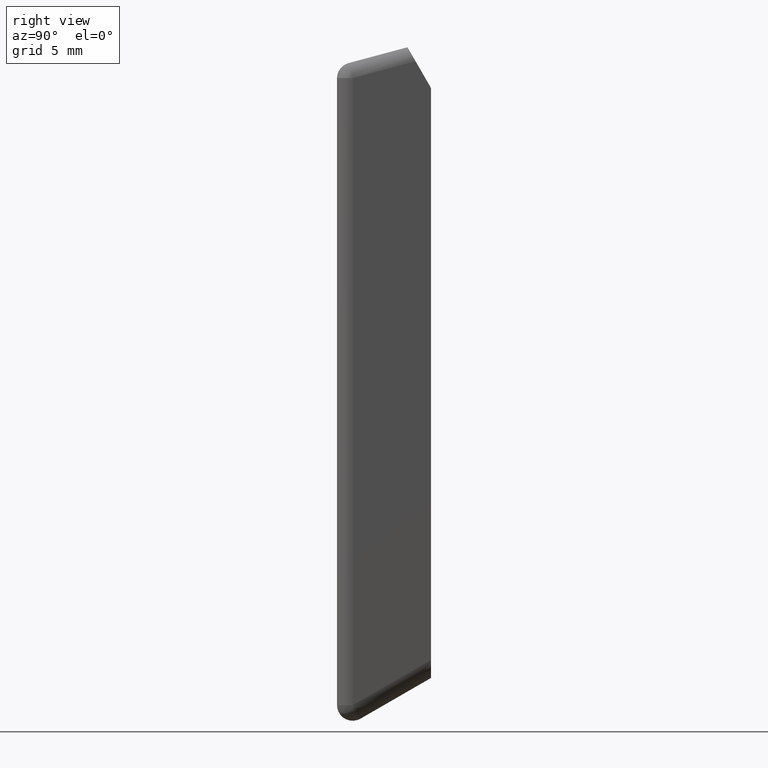
[diagram: clean part render]
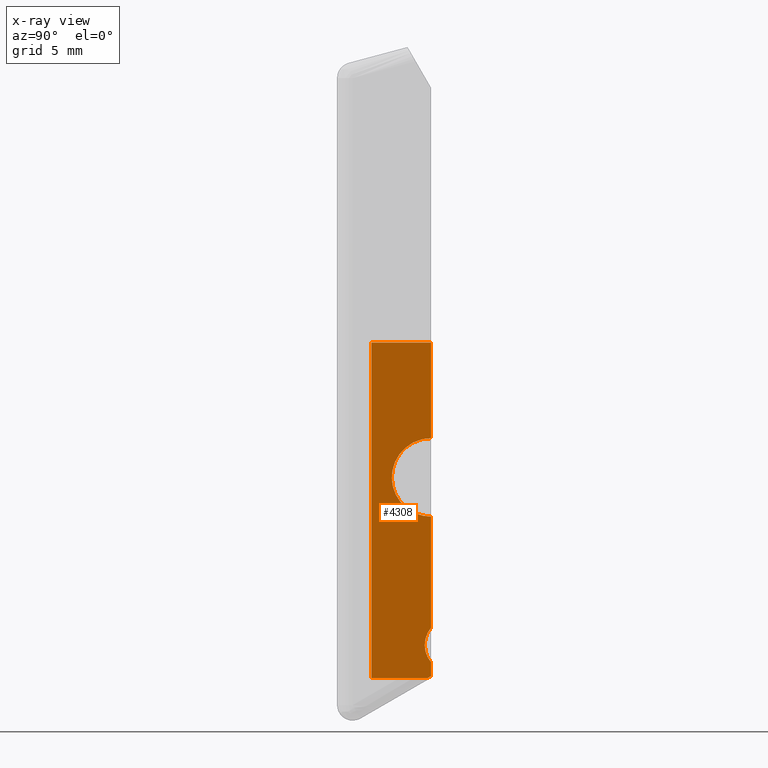
[diagram: x-ray — body ghosted, one internal face saturated and labeled with its STEP entity id]
A machine part, right view, then the same camera in x-ray: the body is ghosted and one INTERNAL B-rep face — a face not visible from any outside direction — is saturated and labeled: STEP entity #4308.
In plain terms, the highlighted face is a freeform B-spline surface patch.
Its self-contained STEP definition (entity closure, byte-faithful):
#2127=CARTESIAN_POINT('',(6.250000000000000,0.0,13.032000000000000));
#2128=VERTEX_POINT('',#2127);
#2153=CARTESIAN_POINT('',(6.250000000000000,-1.972152E-031,18.032000000000000));
#2154=VERTEX_POINT('',#2153);
#2160=CARTESIAN_POINT('',(6.250000000000000,0.0,13.032000000000000));
#2161=CARTESIAN_POINT('',(6.250000000000000,-2.500000000000000,13.032000000000000));
#2162=CARTESIAN_POINT('',(6.250000000000000,-2.500000000000000,15.532000000000000));
#2163=CARTESIAN_POINT('',(6.250000000000000,-2.500000000000000,18.032000000000007));
#2164=CARTESIAN_POINT('',(6.250000000000000,0.0,18.032000000000000));
#2172=(BOUNDED_CURVE()B_SPLINE_CURVE(2,(#2160,#2161,#2162,#2163,#2164),.UNSPECIFIED.,.F.,.U.)B_SPLINE_CURVE_WITH_KNOTS((3,2,3),(0.0,0.500000000000000,1.0),.UNSPECIFIED.)CURVE()GEOMETRIC_REPRESENTATION_ITEM()RATIONAL_B_SPLINE_CURVE((1.0,0.707106781186548,1.0,0.707106781186548,1.0))REPRESENTATION_ITEM(''));
#2173=EDGE_CURVE('',#2128,#2154,#2172,.T.);
#2192=CARTESIAN_POINT('',(6.250000000000000,0.0,3.736000000000105));
#2193=VERTEX_POINT('',#2192);
#2216=CARTESIAN_POINT('',(6.250000000000000,-4.930381E-032,5.927000000000110));
#2217=VERTEX_POINT('',#2216);
#2223=CARTESIAN_POINT('',(6.250000000000000,1.301043E-015,3.736000000000106));
#2224=CARTESIAN_POINT('',(6.250000000000000,-0.923202268357292,4.831500000000108));
#2225=CARTESIAN_POINT('',(6.250000000000000,-1.734723E-015,5.927000000000111));
#2233=(BOUNDED_CURVE()B_SPLINE_CURVE(2,(#2223,#2224,#2225),.UNSPECIFIED.,.F.,.U.)CURVE()GEOMETRIC_REPRESENTATION_ITEM()QUASI_UNIFORM_CURVE()RATIONAL_B_SPLINE_CURVE((1.0,0.764678675986619,1.0))REPRESENTATION_ITEM(''));
#2234=EDGE_CURVE('',#2193,#2217,#2233,.T.);
#2280=CARTESIAN_POINT('',(6.250000000000000,-0.200004400209841,2.731999999999955));
#2281=VERTEX_POINT('',#2280);
#2316=CARTESIAN_POINT('',(6.250000000000000,0.0,2.847469207054425));
#2317=VERTEX_POINT('',#2316);
#2323=CARTESIAN_POINT('',(6.250000000000000,-0.200004400209841,2.731999999999955));
#2324=CARTESIAN_POINT('',(6.250000000000000,0.0,2.847469207054425));
#2325=QUASI_UNIFORM_CURVE('',1,(#2323,#2324),.UNSPECIFIED.,.F.,.U.);
#2326=EDGE_CURVE('',#2281,#2317,#2325,.T.);
#3043=CARTESIAN_POINT('',(6.250000000000000,0.0,24.139046767792600));
#3044=VERTEX_POINT('',#3043);
#3067=CARTESIAN_POINT('',(6.250000000000000,-3.800000000000000,24.139046767792600));
#3068=VERTEX_POINT('',#3067);
#3084=CARTESIAN_POINT('',(6.250000000000000,-3.800000000000000,24.139046767792600));
#3085=CARTESIAN_POINT('',(6.250000000000000,0.0,24.139046767792600));
#3086=QUASI_UNIFORM_CURVE('',1,(#3084,#3085),.UNSPECIFIED.,.F.,.U.);
#3087=EDGE_CURVE('',#3068,#3044,#3086,.T.);
#4134=CARTESIAN_POINT('',(6.250000000000000,-3.800000000000000,2.732000000000000));
#4135=VERTEX_POINT('',#4134);
#4141=CARTESIAN_POINT('',(6.250000000000000,-3.800000000000000,24.139046767792600));
#4142=CARTESIAN_POINT('',(6.250000000000000,-3.800000000000000,2.732000000000000));
#4143=QUASI_UNIFORM_CURVE('',1,(#4141,#4142),.UNSPECIFIED.,.F.,.U.);
#4144=EDGE_CURVE('',#3068,#4135,#4143,.T.);
#4189=CARTESIAN_POINT('',(6.250000000000000,-3.800000000000000,2.732000000000000));
#4190=CARTESIAN_POINT('',(6.250000000000000,-0.200004400209841,2.731999999999955));
#4191=QUASI_UNIFORM_CURVE('',1,(#4189,#4190),.UNSPECIFIED.,.F.,.U.);
#4192=EDGE_CURVE('',#4135,#2281,#4191,.T.);
#4205=CARTESIAN_POINT('',(6.250000000000000,0.0,3.736000000000105));
#4206=CARTESIAN_POINT('',(6.250000000000000,0.0,2.847469207054425));
#4207=QUASI_UNIFORM_CURVE('',1,(#4205,#4206),.UNSPECIFIED.,.F.,.U.);
#4208=EDGE_CURVE('',#2193,#2317,#4207,.T.);
#4225=CARTESIAN_POINT('',(6.250000000000000,0.0,13.032000000000000));
#4226=CARTESIAN_POINT('',(6.250000000000000,-4.930381E-032,5.927000000000110));
#4227=QUASI_UNIFORM_CURVE('',1,(#4225,#4226),.UNSPECIFIED.,.F.,.U.);
#4228=EDGE_CURVE('',#2128,#2217,#4227,.T.);
#4255=CARTESIAN_POINT('',(6.250000000000000,0.0,24.139046767792600));
#4256=CARTESIAN_POINT('',(6.250000000000000,-1.972152E-031,18.032000000000000));
#4257=QUASI_UNIFORM_CURVE('',1,(#4255,#4256),.UNSPECIFIED.,.F.,.U.);
#4258=EDGE_CURVE('',#3044,#2154,#4257,.T.);
#4292=CARTESIAN_POINT('',(6.250000000000000,-3.989809956963181,25.208329717123029));
#4293=CARTESIAN_POINT('',(6.250000000000000,-3.989809956963181,1.662717433457355));
#4294=CARTESIAN_POINT('',(6.250000000000000,0.189810092861771,25.208329717123029));
#4295=CARTESIAN_POINT('',(6.250000000000000,0.189810092861771,1.662717433457355));
#4296=B_SPLINE_SURFACE_WITH_KNOTS('',1,1,((#4292,#4294),(#4293,#4295)),.UNSPECIFIED.,.F.,.F.,.U.,(2,2),(2,2),(0.0,23.545612283665669),(0.0,4.179620049824953),.UNSPECIFIED.);
#4297=ORIENTED_EDGE('',*,*,#4228,.F.);
#4298=ORIENTED_EDGE('',*,*,#2173,.T.);
#4299=ORIENTED_EDGE('',*,*,#4258,.F.);
#4300=ORIENTED_EDGE('',*,*,#3087,.F.);
#4301=ORIENTED_EDGE('',*,*,#4144,.T.);
#4302=ORIENTED_EDGE('',*,*,#4192,.T.);
#4303=ORIENTED_EDGE('',*,*,#2326,.T.);
#4304=ORIENTED_EDGE('',*,*,#4208,.F.);
#4305=ORIENTED_EDGE('',*,*,#2234,.T.);
#4306=EDGE_LOOP('',(#4297,#4298,#4299,#4300,#4301,#4302,#4303,#4304,#4305));
#4307=FACE_OUTER_BOUND('',#4306,.T.);
#4308=ADVANCED_FACE('',(#4307),#4296,.T.);